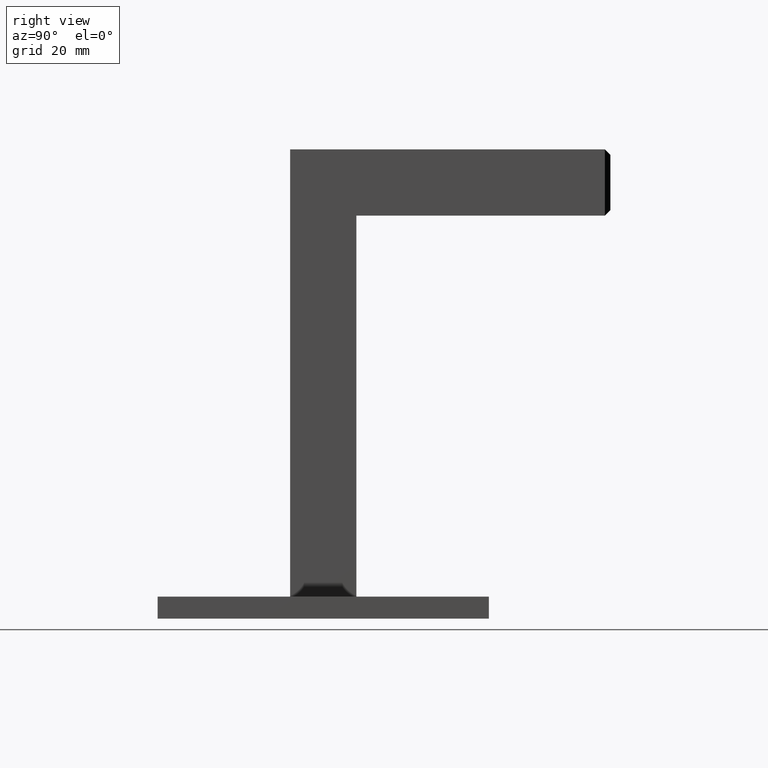
[diagram: clean part render]
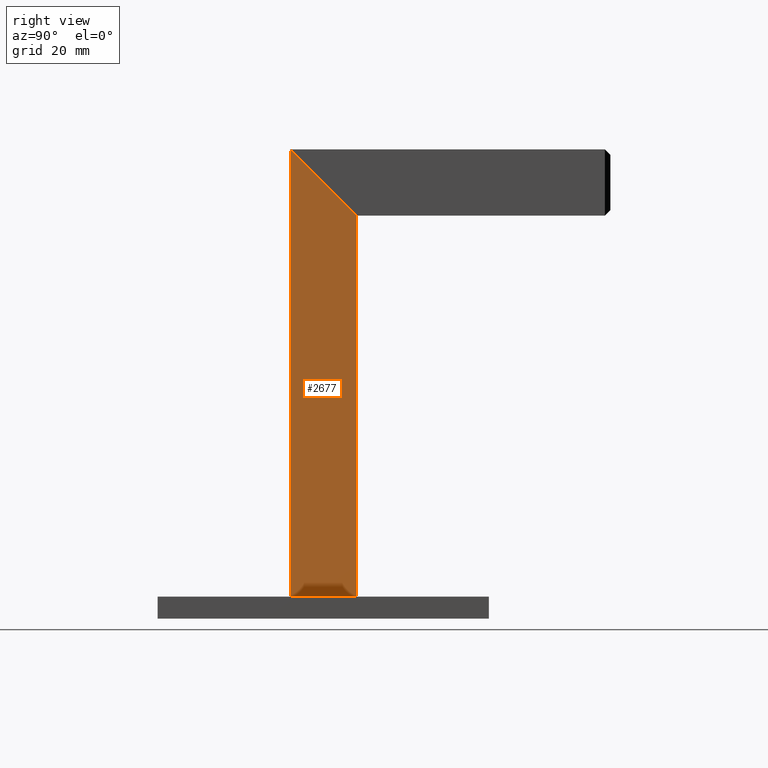
[diagram: same view with one face highlighted and labeled with its STEP entity id]
A machine part, right view. The second image highlights one B-rep face of the part: STEP entity #2677.
In plain terms, the highlighted planar face has unit normal (-1, 0, 0).
Its self-contained STEP definition (entity closure, byte-faithful):
#387 = CARTESIAN_POINT ( 'NONE',  ( 5.999999999999999112, -8.673617379884033500E-16, 4.000000000000000000 ) ) ;
#473 = ORIENTED_EDGE ( 'NONE', *, *, #9113, .F. ) ;
#816 = EDGE_CURVE ( 'NONE', #5301, #7084, #7076, .T. ) ;
#917 = EDGE_CURVE ( 'NONE', #5301, #3784, #6513, .T. ) ;
#1331 = FACE_OUTER_BOUND ( 'NONE', #7886, .T. ) ;
#2014 = VECTOR ( 'NONE', #5499, 1000.000000000000000 ) ;
#2056 = VECTOR ( 'NONE', #9134, 1000.000000000000000 ) ;
#2172 = LINE ( 'NONE', #9103, #2056 ) ;
#2677 = ADVANCED_FACE ( 'NONE', ( #1331 ), #5658, .F. ) ;
#2687 = ORIENTED_EDGE ( 'NONE', *, *, #816, .T. ) ;
#3008 = CARTESIAN_POINT ( 'NONE',  ( 6.000000000000000000, 5.999999999999997335, 4.000000000000000000 ) ) ;
#3025 = DIRECTION ( 'NONE',  ( 0.000000000000000000, -1.224646799147353207E-16, 1.000000000000000000 ) ) ;
#3784 = VERTEX_POINT ( 'NONE', #6316 ) ;
#4408 = CARTESIAN_POINT ( 'NONE',  ( 6.000000000000000000, 5.999999999999985789, 73.00000000000001421 ) ) ;
#4462 = AXIS2_PLACEMENT_3D ( 'NONE', #6548, #9506, #8047 ) ;
#4839 = ORIENTED_EDGE ( 'NONE', *, *, #917, .F. ) ;
#5301 = VERTEX_POINT ( 'NONE', #3008 ) ;
#5329 = VECTOR ( 'NONE', #9188, 1000.000000000000000 ) ;
#5407 = EDGE_CURVE ( 'NONE', #7265, #7084, #2172, .T. ) ;
#5499 = DIRECTION ( 'NONE',  ( -1.445602896647339163E-16, -1.000000000000000000, 0.000000000000000000 ) ) ;
#5658 = PLANE ( 'NONE',  #4462 ) ;
#6316 = CARTESIAN_POINT ( 'NONE',  ( 5.999999999999998224, -6.000000000000012434, 4.000000000000000000 ) ) ;
#6513 = LINE ( 'NONE', #387, #2014 ) ;
#6548 = CARTESIAN_POINT ( 'NONE',  ( 6.000000000000000000, 5.999999999999998224, 0.000000000000000000 ) ) ;
#6976 = CARTESIAN_POINT ( 'NONE',  ( 6.000000000000000000, 5.999999999999998224, 0.000000000000000000 ) ) ;
#7076 = LINE ( 'NONE', #6976, #5329 ) ;
#7084 = VERTEX_POINT ( 'NONE', #4408 ) ;
#7265 = VERTEX_POINT ( 'NONE', #8480 ) ;
#7670 = VECTOR ( 'NONE', #3025, 1000.000000000000000 ) ;
#7886 = EDGE_LOOP ( 'NONE', ( #4839, #2687, #8226, #473 ) ) ;
#8047 = DIRECTION ( 'NONE',  ( -1.445602896647339163E-16, -1.000000000000000000, 0.000000000000000000 ) ) ;
#8226 = ORIENTED_EDGE ( 'NONE', *, *, #5407, .F. ) ;
#8248 = CARTESIAN_POINT ( 'NONE',  ( 5.999999999999998224, -6.000000000000001776, 0.000000000000000000 ) ) ;
#8480 = CARTESIAN_POINT ( 'NONE',  ( 5.999999999999998224, -6.000000000000019540, 84.99999999999998579 ) ) ;
#9067 = LINE ( 'NONE', #8248, #7670 ) ;
#9103 = CARTESIAN_POINT ( 'NONE',  ( 6.000000000000005329, 42.49999999999999289, 36.50000000000000000 ) ) ;
#9113 = EDGE_CURVE ( 'NONE', #3784, #7265, #9067, .T. ) ;
#9134 = DIRECTION ( 'NONE',  ( 1.022195611122249302E-16, 0.7071067811865475727, -0.7071067811865474617 ) ) ;
#9188 = DIRECTION ( 'NONE',  ( 0.000000000000000000, -1.224646799147353207E-16, 1.000000000000000000 ) ) ;
#9506 = DIRECTION ( 'NONE',  ( -1.000000000000000000, 1.445602896647339163E-16, 1.770352960217306030E-32 ) ) ;